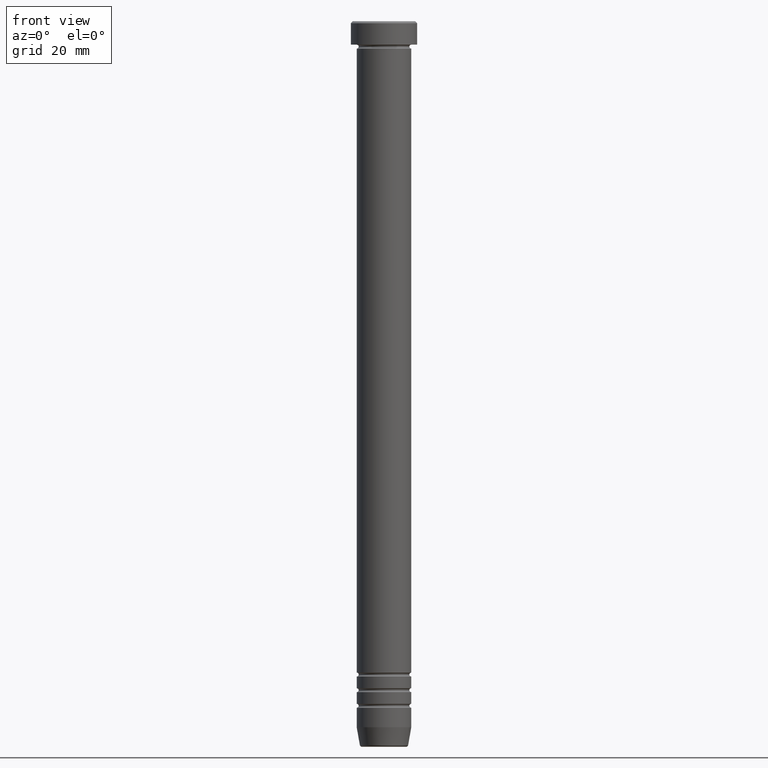
[diagram: clean part render]
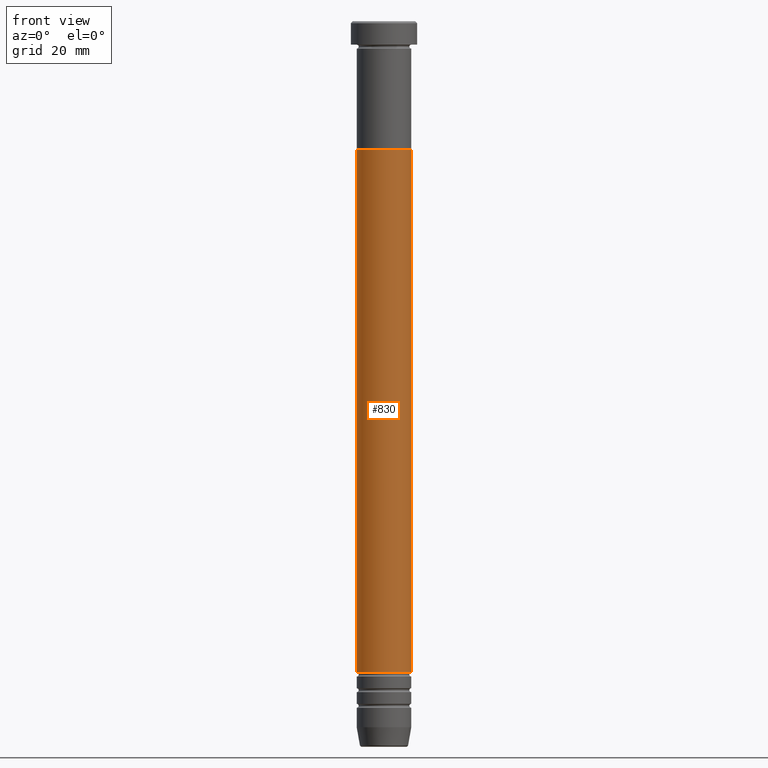
[diagram: same view with one face highlighted and labeled with its STEP entity id]
A machine part, front view. The second image highlights one B-rep face of the part: STEP entity #830.
In plain terms, the highlighted cylindrical surface (edge-blend (fillet) strip) has radius 7 mm, axis along (-0, -0, 1).
Its self-contained STEP definition (entity closure, byte-faithful):
#9 = ORIENTED_EDGE ( 'NONE', *, *, #932, .T. ) ;
#26 = AXIS2_PLACEMENT_3D ( 'NONE', #464, #906, #308 ) ;
#32 = CARTESIAN_POINT ( 'NONE',  ( 0.000000000000000000, 0.000000000000000000, -167.0000000000000000 ) ) ;
#37 = VECTOR ( 'NONE', #733, 1000.000000000000000 ) ;
#53 = VERTEX_POINT ( 'NONE', #657 ) ;
#108 = VERTEX_POINT ( 'NONE', #447 ) ;
#155 = CARTESIAN_POINT ( 'NONE',  ( 7.000000000000000000, 0.000000000000000000, -33.00000000000000000 ) ) ;
#165 = ORIENTED_EDGE ( 'NONE', *, *, #376, .F. ) ;
#172 = AXIS2_PLACEMENT_3D ( 'NONE', #1078, #686, #517 ) ;
#209 = CIRCLE ( 'NONE', #26, 7.000000000000000000 ) ;
#249 = CARTESIAN_POINT ( 'NONE',  ( -6.999999999999995559, 8.572527594031467273E-16, 0.000000000000000000 ) ) ;
#275 = LINE ( 'NONE', #621, #37 ) ;
#286 = CIRCLE ( 'NONE', #912, 6.999999999999991118 ) ;
#298 = ORIENTED_EDGE ( 'NONE', *, *, #1029, .T. ) ;
#308 = DIRECTION ( 'NONE',  ( 1.000000000000000000, 0.000000000000000000, 0.000000000000000000 ) ) ;
#376 = EDGE_CURVE ( 'NONE', #1139, #925, #209, .T. ) ;
#377 = FACE_OUTER_BOUND ( 'NONE', #768, .T. ) ;
#393 = DIRECTION ( 'NONE',  ( -0.000000000000000000, -0.000000000000000000, 1.000000000000000000 ) ) ;
#447 = CARTESIAN_POINT ( 'NONE',  ( 6.999999999999991118, 0.000000000000000000, -167.0000000000000000 ) ) ;
#464 = CARTESIAN_POINT ( 'NONE',  ( 0.000000000000000000, 0.000000000000000000, -33.00000000000000000 ) ) ;
#506 = DIRECTION ( 'NONE',  ( -0.000000000000000000, -0.000000000000000000, 1.000000000000000000 ) ) ;
#517 = DIRECTION ( 'NONE',  ( 1.000000000000000000, 0.000000000000000000, 0.000000000000000000 ) ) ;
#530 = ORIENTED_EDGE ( 'NONE', *, *, #625, .F. ) ;
#621 = CARTESIAN_POINT ( 'NONE',  ( 6.999999999999995559, 0.000000000000000000, 0.000000000000000000 ) ) ;
#625 = EDGE_CURVE ( 'NONE', #53, #1139, #681, .T. ) ;
#657 = CARTESIAN_POINT ( 'NONE',  ( -6.999999999999991118, 8.572527594031464315E-16, -167.0000000000000000 ) ) ;
#681 = LINE ( 'NONE', #249, #842 ) ;
#686 = DIRECTION ( 'NONE',  ( -0.000000000000000000, -0.000000000000000000, 1.000000000000000000 ) ) ;
#727 = CYLINDRICAL_SURFACE ( 'NONE', #172, 6.999999999999995559 ) ;
#733 = DIRECTION ( 'NONE',  ( -0.000000000000000000, -0.000000000000000000, 1.000000000000000000 ) ) ;
#751 = DIRECTION ( 'NONE',  ( 1.000000000000000000, 0.000000000000000000, 0.000000000000000000 ) ) ;
#768 = EDGE_LOOP ( 'NONE', ( #530, #9, #298, #165 ) ) ;
#830 = ADVANCED_FACE ( 'NONE', ( #377 ), #727, .T. ) ;
#842 = VECTOR ( 'NONE', #506, 1000.000000000000000 ) ;
#906 = DIRECTION ( 'NONE',  ( -0.000000000000000000, -0.000000000000000000, 1.000000000000000000 ) ) ;
#912 = AXIS2_PLACEMENT_3D ( 'NONE', #32, #393, #751 ) ;
#925 = VERTEX_POINT ( 'NONE', #155 ) ;
#932 = EDGE_CURVE ( 'NONE', #53, #108, #286, .T. ) ;
#978 = CARTESIAN_POINT ( 'NONE',  ( -7.000000000000000000, 8.572527594031473190E-16, -33.00000000000000000 ) ) ;
#1029 = EDGE_CURVE ( 'NONE', #108, #925, #275, .T. ) ;
#1078 = CARTESIAN_POINT ( 'NONE',  ( 0.000000000000000000, 0.000000000000000000, 0.000000000000000000 ) ) ;
#1139 = VERTEX_POINT ( 'NONE', #978 ) ;